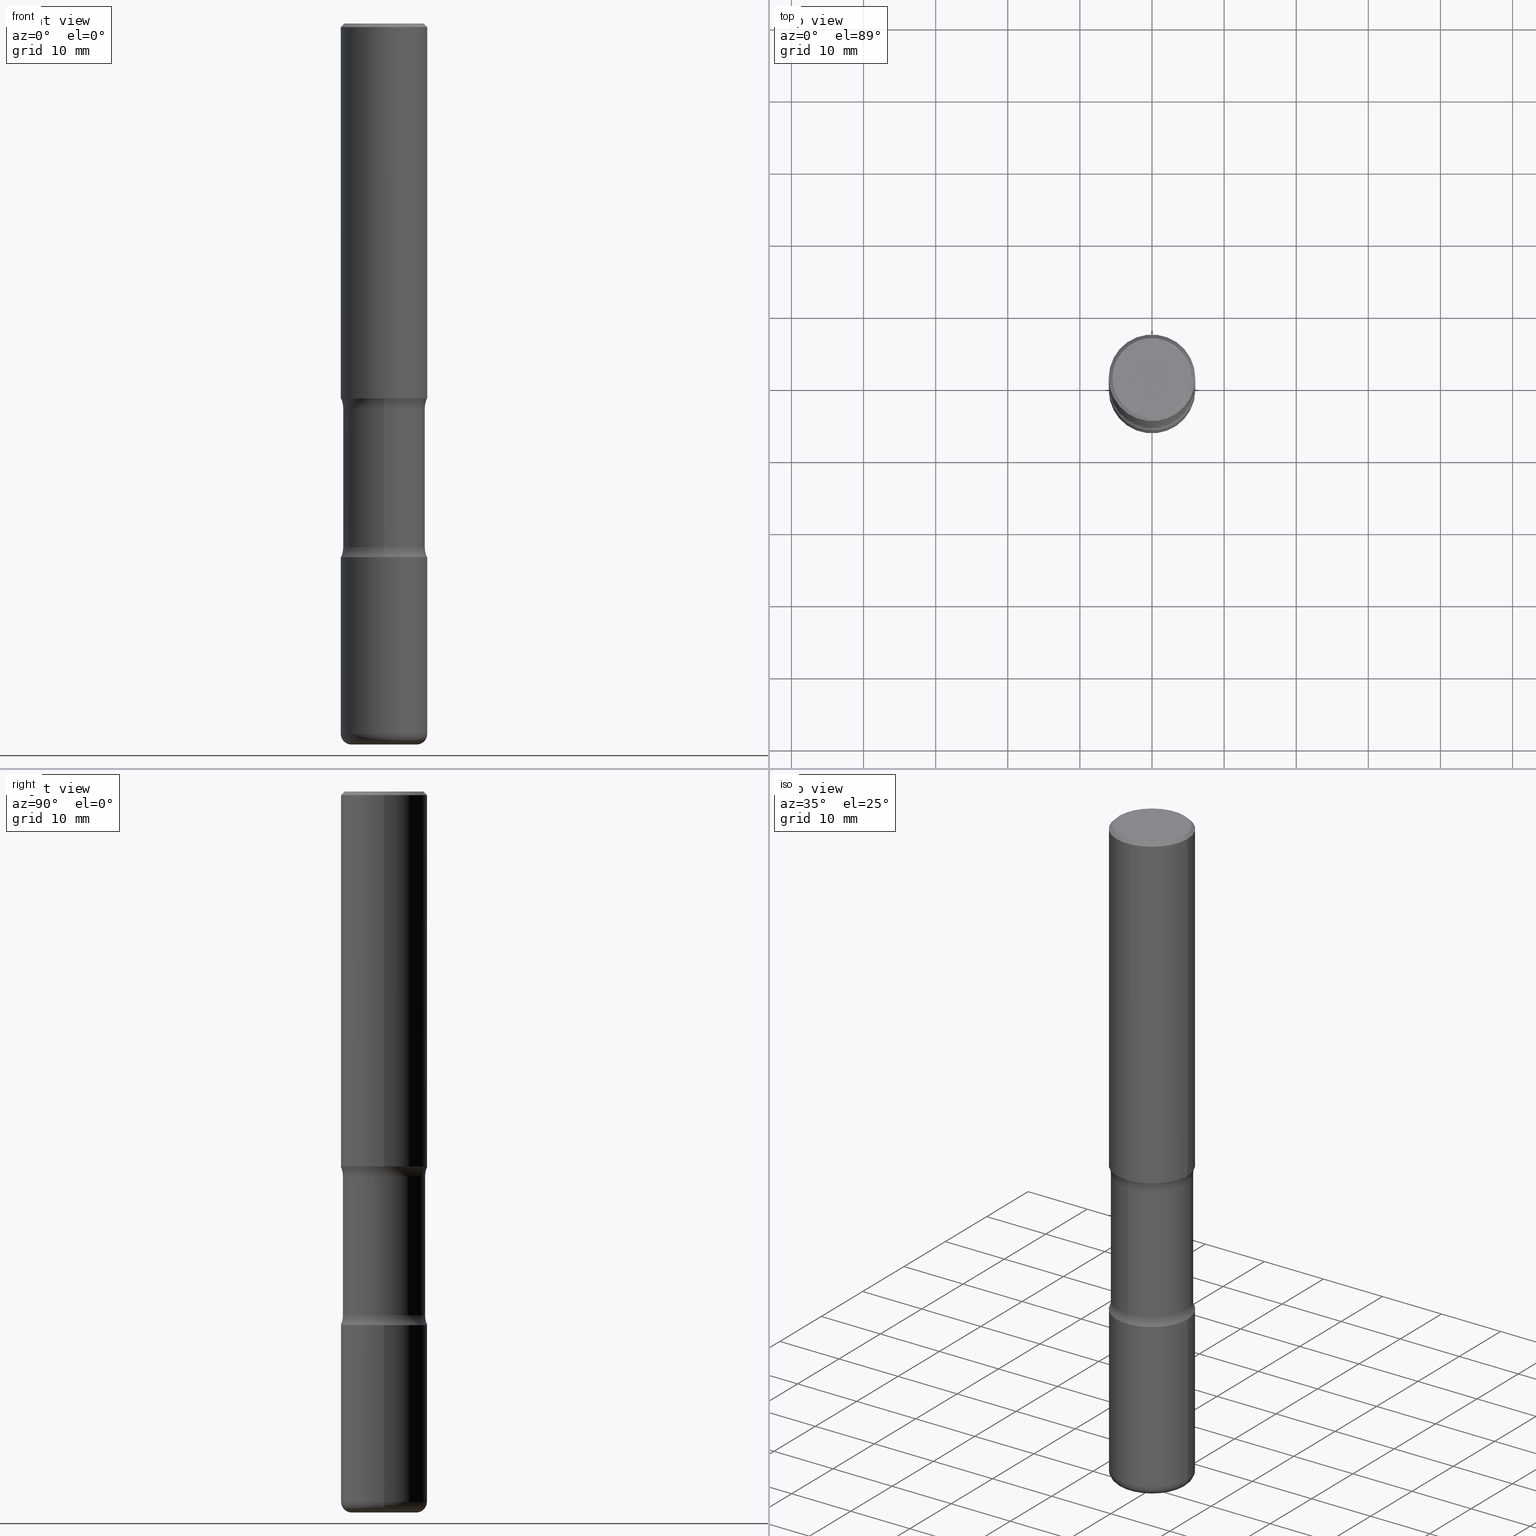
[diagram: canonical four-view strip — front | top / right | iso, engineering-drawing reading convention]
A machine part, canonical four-view strip (front | top / right | iso — engineering-drawing reading convention). The complete STEP part file that produces these views, byte-faithful:
ISO-10303-21;
HEADER;
FILE_DESCRIPTION (( 'STEP AP203' ),
    '1' );
FILE_NAME ('47702.STEP',
    '2024-03-02T07:29:10',
    ( '' ),
    ( '' ),
    'SwSTEP 2.0',
    'SolidWorks 2023',
    '' );
FILE_SCHEMA (( 'CONFIG_CONTROL_DESIGN' ));
ENDSEC;

DATA;
#1 = CARTESIAN_POINT ( 'NONE',  ( -0.2362000000000001598, -1.930493169962915017E-15, -2.047200000000000131 ) ) ;
#2 = PLANE ( 'NONE',  #527 ) ;
#3 = DIRECTION ( 'NONE',  ( 2.445468806185136597E-29, -3.491481338843145583E-15, -1.000000000000000000 ) ) ;
#4 = CIRCLE ( 'NONE', #220, 0.1250000000000000000 ) ;
#5 = AXIS2_PLACEMENT_3D ( 'NONE', #321, #384, #298 ) ;
#6 = CYLINDRICAL_SURFACE ( 'NONE', #74, 0.2243999999999999329 ) ;
#7 = DIRECTION ( 'NONE',  ( -2.445468806185136597E-29, 3.491481338843145583E-15, 1.000000000000000000 ) ) ;
#8 = CYLINDRICAL_SURFACE ( 'NONE', #249, 0.2362000000000001598 ) ;
#9 = DIRECTION ( 'NONE',  ( -2.445468806185136597E-29, 3.491481338843145583E-15, 1.000000000000000000 ) ) ;
#10 = CLOSED_SHELL ( 'NONE', ( #496, #555, #421, #315, #323, #400 ) ) ;
#11 = CIRCLE ( 'NONE', #404, 0.2361999999999998823 ) ;
#12 = DIRECTION ( 'NONE',  ( -2.445468806185136597E-29, 3.491481338843145583E-15, 1.000000000000000000 ) ) ;
#13 = ORIENTED_EDGE ( 'NONE', *, *, #200, .F. ) ;
#14 = FACE_OUTER_BOUND ( 'NONE', #292, .T. ) ;
#15 = VERTEX_POINT ( 'NONE', #552 ) ;
#16 = CARTESIAN_POINT ( 'NONE',  ( 4.936620538380257512E-29, -7.247636831167487464E-15, -2.047200000000000131 ) ) ;
#17 = VERTEX_POINT ( 'NONE', #199 ) ;
#18 = CONICAL_SURFACE ( 'NONE', #131, 0.2361999999999998823, 0.7853981633974479459 ) ;
#19 = AXIS2_PLACEMENT_3D ( 'NONE', #244, #497, #417 ) ;
#20 = EDGE_CURVE ( 'NONE', #549, #366, #46, .T. ) ;
#21 = ORIENTED_EDGE ( 'NONE', *, *, #328, .T. ) ;
#22 = COORDINATED_UNIVERSAL_TIME_OFFSET ( 5, 0, .BEHIND. ) ;
#23 = FACE_OUTER_BOUND ( 'NONE', #355, .T. ) ;
#24 = EDGE_LOOP ( 'NONE', ( #370, #377, #56, #13 ) ) ;
#25 = EDGE_CURVE ( 'NONE', #480, #351, #337, .T. ) ;
#26 = DIRECTION ( 'NONE',  ( -2.445468806185136597E-29, 3.491481338843145583E-15, 1.000000000000000000 ) ) ;
#27 = AXIS2_PLACEMENT_3D ( 'NONE', #49, #365, #363 ) ;
#28 = APPROVAL_PERSON_ORGANIZATION ( #101, #164, #233 ) ;
#29 = DIRECTION ( 'NONE',  ( 2.438088387897960049E-29, -3.491481338843145188E-15, -1.000000000000000000 ) ) ;
#30 = EDGE_LOOP ( 'NONE', ( #66, #240, #243, #499 ) ) ;
#31 = CARTESIAN_POINT ( 'NONE',  ( -1.579972688886734072E-15, -0.2244000000000073713, -2.100216601173594544 ) ) ;
#32 = PERSON_AND_ORGANIZATION ( #43, #478 ) ;
#33 = ORIENTED_EDGE ( 'NONE', *, *, #42, .T. ) ;
#34 = DIRECTION ( 'NONE',  ( 1.000000000000000000, -6.982962677686266711E-15, 4.876176775795936353E-29 ) ) ;
#35 = DIRECTION ( 'NONE',  ( 2.525985086076564115E-29, -3.376177443336566513E-15, -1.000000000000000000 ) ) ;
#36 = AXIS2_PLACEMENT_3D ( 'NONE', #208, #9, #305 ) ;
#37 = CIRCLE ( 'NONE', #19, 0.2161999999999998368 ) ;
#38 = AXIS2_PLACEMENT_3D ( 'NONE', #190, #88, #524 ) ;
#39 = LINE ( 'NONE', #117, #99 ) ;
#40 = ADVANCED_FACE ( 'NONE', ( #334 ), #294, .F. ) ;
#41 = DIRECTION ( 'NONE',  ( -2.438088387897960049E-29, 3.491481338843145188E-15, 1.000000000000000000 ) ) ;
#42 = EDGE_CURVE ( 'NONE', #513, #207, #115, .T. ) ;
#43 = PERSON ( 'UNSPECIFIED', 'UNSPECIFIED', 'UNSPECIFIED', ('UNSPECIFIED'), ('UNSPECIFIED'), ('UNSPECIFIED') ) ;
#44 = DIRECTION ( 'NONE',  ( 7.105427357601001859E-15, 1.000000000000000000, -3.491481338843145583E-15 ) ) ;
#45 = DIRECTION ( 'NONE',  ( -2.445468806185136597E-29, 3.491481338843145583E-15, 1.000000000000000000 ) ) ;
#46 = CIRCLE ( 'NONE', #519, 0.2362000000000001321 ) ;
#47 = ORIENTED_EDGE ( 'NONE', *, *, #414, .T. ) ;
#48 = LOCAL_TIME ( 2, 29, 10.00000000000000000, #22 ) ;
#49 = CARTESIAN_POINT ( 'NONE',  ( 9.483283483505337853E-29, -1.353961548389983144E-14, -3.877899999999999014 ) ) ;
#50 = ADVANCED_FACE ( 'NONE', ( #113 ), #395, .T. ) ;
#51 = DIRECTION ( 'NONE',  ( 2.438088387897960049E-29, -3.491481338843145188E-15, -1.000000000000000000 ) ) ;
#52 = ORIENTED_EDGE ( 'NONE', *, *, #90, .T. ) ;
#53 = DATE_AND_TIME ( #271, #202 ) ;
#54 = CARTESIAN_POINT ( 'NONE',  ( 9.710227154047748282E-29, -1.362793696358492956E-14, -3.937000000000000277 ) ) ;
#55 = CC_DESIGN_PERSON_AND_ORGANIZATION_ASSIGNMENT ( #554, #460, ( #167 ) ) ;
#56 = ORIENTED_EDGE ( 'NONE', *, *, #293, .F. ) ;
#57 = CIRCLE ( 'NONE', #340, 0.1771000000000002295 ) ;
#58 = AXIS2_PLACEMENT_3D ( 'NONE', #440, #51, #182 ) ;
#59 = CARTESIAN_POINT ( 'NONE',  ( 0.000000000000000000, 0.000000000000000000, 0.000000000000000000 ) ) ;
#60 = DIRECTION ( 'NONE',  ( -6.982962677686266711E-15, -1.000000000000000000, 0.000000000000000000 ) ) ;
#61 = EDGE_CURVE ( 'NONE', #179, #68, #339, .T. ) ;
#62 = DIRECTION ( 'NONE',  ( 6.982962677686265922E-15, 1.000000000000000000, -3.469747663417773452E-15 ) ) ;
#63 =( NAMED_UNIT ( * ) SI_UNIT ( $, .STERADIAN. ) SOLID_ANGLE_UNIT ( ) );
#64 = EDGE_LOOP ( 'NONE', ( #21, #466, #535, #102 ) ) ;
#65 = CLOSED_SHELL ( 'NONE', ( #397, #210, #149, #259, #40, #297, #121, #345 ) ) ;
#66 = ORIENTED_EDGE ( 'NONE', *, *, #69, .F. ) ;
#67 = PERSON_AND_ORGANIZATION_ROLE ( 'classification_officer' ) ;
#68 = VERTEX_POINT ( 'NONE', #282 ) ;
#69 = EDGE_CURVE ( 'NONE', #269, #526, #76, .T. ) ;
#70 = DIRECTION ( 'NONE',  ( 1.000000000000000000, -6.982962677686267499E-15, 0.000000000000000000 ) ) ;
#71 = DIRECTION ( 'NONE',  ( 2.525985086076564115E-29, -3.376177443336566513E-15, -1.000000000000000000 ) ) ;
#72 = PERSON_AND_ORGANIZATION ( #43, #478 ) ;
#73 = EDGE_LOOP ( 'NONE', ( #291, #401, #296, #444 ) ) ;
#74 = AXIS2_PLACEMENT_3D ( 'NONE', #276, #311, #446 ) ;
#75 = AXIS2_PLACEMENT_3D ( 'NONE', #104, #26, #203 ) ;
#76 = LINE ( 'NONE', #545, #142 ) ;
#77 = CARTESIAN_POINT ( 'NONE',  ( 0.2362000000000001321, -1.182145751705511899E-14, -2.913400000000000212 ) ) ;
#78 = PRODUCT_RELATED_PRODUCT_CATEGORY ( 'detail', '', ( #399 ) ) ;
#79 = CARTESIAN_POINT ( 'NONE',  ( 0.1771000000000002295, -1.477629817411807190E-14, -3.877899999999999014 ) ) ;
#80 = FACE_OUTER_BOUND ( 'NONE', #360, .T. ) ;
#81 = AXIS2_PLACEMENT_3D ( 'NONE', #373, #105, #462 ) ;
#82 = AXIS2_PLACEMENT_3D ( 'NONE', #317, #482, #95 ) ;
#83 = PERSON_AND_ORGANIZATION_ROLE ( 'creator' ) ;
#84 = EDGE_CURVE ( 'NONE', #68, #225, #445, .T. ) ;
#85 = DIRECTION ( 'NONE',  ( -1.000000000000000000, 7.105427357600997914E-15, 0.000000000000000000 ) ) ;
#86 = CYLINDRICAL_SURFACE ( 'NONE', #277, 0.2361999999999999933 ) ;
#87 = EDGE_CURVE ( 'NONE', #549, #204, #476, .T. ) ;
#88 = DIRECTION ( 'NONE',  ( 2.525985086076564115E-29, -3.376177443336566513E-15, -1.000000000000000000 ) ) ;
#89 = CIRCLE ( 'NONE', #387, 0.2243999999999999606 ) ;
#90 = EDGE_CURVE ( 'NONE', #351, #204, #89, .T. ) ;
#91 = VECTOR ( 'NONE', #136, 39.37007874015748143 ) ;
#92 = DIRECTION ( 'NONE',  ( 1.000000000000000000, -6.982962677686266711E-15, 4.876176775795936353E-29 ) ) ;
#93 = FACE_OUTER_BOUND ( 'NONE', #393, .T. ) ;
#94 = ORIENTED_EDGE ( 'NONE', *, *, #20, .F. ) ;
#95 = DIRECTION ( 'NONE',  ( 6.982962677686265922E-15, 1.000000000000000000, -3.652203200085913934E-15 ) ) ;
#96 = CYLINDRICAL_SURFACE ( 'NONE', #358, 0.2362000000000001598 ) ;
#97 = DIRECTION ( 'NONE',  ( -6.982962677686265922E-15, -1.000000000000000000, 3.376177443336566513E-15 ) ) ;
#98 = ORIENTED_EDGE ( 'NONE', *, *, #69, .T. ) ;
#99 = VECTOR ( 'NONE', #212, 39.37007874015748143 ) ;
#100 = CC_DESIGN_APPROVAL ( #164, ( #167 ) ) ;
#101 = PERSON_AND_ORGANIZATION ( #43, #478 ) ;
#102 = ORIENTED_EDGE ( 'NONE', *, *, #538, .F. ) ;
#103 = CARTESIAN_POINT ( 'NONE',  ( 0.2361999999999998823, -1.690279253850498179E-15, -0.02000000000000006981 ) ) ;
#104 = CARTESIAN_POINT ( 'NONE',  ( 7.124628819939777829E-29, -1.017208173258562247E-14, -2.913400000000000212 ) ) ;
#105 = DIRECTION ( 'NONE',  ( 2.445468806185136597E-29, -3.491481338843145583E-15, -1.000000000000000000 ) ) ;
#106 = DATE_AND_TIME ( #330, #48 ) ;
#107 = TOROIDAL_SURFACE ( 'NONE', #547, 0.3493999999999998218, 0.1249999999999999029 ) ;
#108 = VECTOR ( 'NONE', #420, 39.37007874015748143 ) ;
#109 = DIRECTION ( 'NONE',  ( -1.000000000000000000, 6.982962677686265922E-15, -4.876176775795935793E-29 ) ) ;
#110 = ORIENTED_EDGE ( 'NONE', *, *, #515, .F. ) ;
#111 = CARTESIAN_POINT ( 'NONE',  ( 1.509716530915769534E-15, 0.2161999999999998368, -7.527240092128373149E-16 ) ) ;
#112 = CARTESIAN_POINT ( 'NONE',  ( -0.1771000000000002295, -1.228124429886869218E-14, -3.877899999999999014 ) ) ;
#113 = FACE_OUTER_BOUND ( 'NONE', #324, .T. ) ;
#114 = DIRECTION ( 'NONE',  ( -2.445468806185136597E-29, 3.491481338843145583E-15, 1.000000000000000000 ) ) ;
#115 = CIRCLE ( 'NONE', #402, 0.1249999999999999029 ) ;
#116 = CIRCLE ( 'NONE', #502, 0.2243999999999999606 ) ;
#117 = CARTESIAN_POINT ( 'NONE',  ( -1.539495750699834052E-15, -0.2244000000000135608, -3.936999999999999389 ) ) ;
#118 = PERSON_AND_ORGANIZATION ( #43, #478 ) ;
#119 = FACE_OUTER_BOUND ( 'NONE', #172, .T. ) ;
#120 = CARTESIAN_POINT ( 'NONE',  ( 6.994978375559792251E-29, -9.986975258939122984E-15, -2.860383398826405354 ) ) ;
#121 = ADVANCED_FACE ( 'NONE', ( #453 ), #419, .F. ) ;
#122 = DIRECTION ( 'NONE',  ( 1.000000000000000000, -6.982962677686266711E-15, 4.876176775795936353E-29 ) ) ;
#123 = CIRCLE ( 'NONE', #201, 0.2362000000000001321 ) ;
#124 = AXIS2_PLACEMENT_3D ( 'NONE', #449, #232, #541 ) ;
#125 = ORIENTED_EDGE ( 'NONE', *, *, #538, .T. ) ;
#126 = DIRECTION ( 'NONE',  ( 1.000000000000000000, -6.982962677686266711E-15, 0.000000000000000000 ) ) ;
#127 = ORIENTED_EDGE ( 'NONE', *, *, #492, .T. ) ;
#128 = CARTESIAN_POINT ( 'NONE',  ( -0.2361999999999999933, 1.678301941865356591E-15, -1.161852468318208757E-29 ) ) ;
#129 = ADVANCED_FACE ( 'NONE', ( #23 ), #503, .F. ) ;
#130 = FACE_OUTER_BOUND ( 'NONE', #73, .T. ) ;
#131 = AXIS2_PLACEMENT_3D ( 'NONE', #559, #3, #302 ) ;
#132 = AXIS2_PLACEMENT_3D ( 'NONE', #274, #226, #403 ) ;
#133 = CARTESIAN_POINT ( 'NONE',  ( 1.649375784469567917E-15, 0.2361999999999899458, -2.913400000000000656 ) ) ;
#134 = ORIENTED_EDGE ( 'NONE', *, *, #391, .F. ) ;
#135 = FACE_OUTER_BOUND ( 'NONE', #413, .T. ) ;
#136 = DIRECTION ( 'NONE',  ( -2.445468806185136877E-29, 3.491481338843145188E-15, 1.000000000000000000 ) ) ;
#137 = ORIENTED_EDGE ( 'NONE', *, *, #87, .T. ) ;
#138 = PERSON_AND_ORGANIZATION_ROLE ( 'creator' ) ;
#139 = DIRECTION ( 'NONE',  ( 1.000000000000000000, -6.982962677686266711E-15, 4.876176775795936353E-29 ) ) ;
#140 = CC_DESIGN_PERSON_AND_ORGANIZATION_ASSIGNMENT ( #283, #67, ( #539 ) ) ;
#141 = ORIENTED_EDGE ( 'NONE', *, *, #376, .F. ) ;
#142 = VECTOR ( 'NONE', #505, 39.37007874015748143 ) ;
#143 = CARTESIAN_POINT ( 'NONE',  ( -0.2362000000000001321, -1.017754666637736977E-14, -2.913400000000000212 ) ) ;
#144 = MANIFOLD_SOLID_BREP ( 'Body-Move/Copy2[2]', #166 ) ;
#145 = DATE_TIME_ROLE ( 'creation_date' ) ;
#146 = DIRECTION ( 'NONE',  ( 2.438088387897960049E-29, -3.491481338843145188E-15, -1.000000000000000000 ) ) ;
#147 = ORIENTED_EDGE ( 'NONE', *, *, #348, .T. ) ;
#148 = DIRECTION ( 'NONE',  ( 6.860497997771529985E-15, 1.000000000000000000, 0.000000000000000000 ) ) ;
#149 = ADVANCED_FACE ( 'NONE', ( #378 ), #107, .F. ) ;
#150 = APPROVAL_STATUS ( 'not_yet_approved' ) ;
#151 = DATE_AND_TIME ( #372, #464 ) ;
#152 = DIRECTION ( 'NONE',  ( 2.525985086076564115E-29, -3.376177443336566513E-15, -1.000000000000000000 ) ) ;
#153 = MANIFOLD_SOLID_BREP ( 'Body-Move/Copy2[4]', #65 ) ;
#154 = COORDINATED_UNIVERSAL_TIME_OFFSET ( 5, 0, .BEHIND. ) ;
#155 = CC_DESIGN_DATE_AND_TIME_ASSIGNMENT ( #485, #145, ( #551 ) ) ;
#156 = CIRCLE ( 'NONE', #5, 0.2362000000000001321 ) ;
#157 = CARTESIAN_POINT ( 'NONE',  ( 5.070539682259229331E-29, -7.426630284172150130E-15, -2.100216601173595432 ) ) ;
#158 = VERTEX_POINT ( 'NONE', #514 ) ;
#159 = ORIENTED_EDGE ( 'NONE', *, *, #354, .T. ) ;
#160 = ADVANCED_FACE ( 'NONE', ( #168 ), #86, .T. ) ;
#161 = CARTESIAN_POINT ( 'NONE',  ( 0.2362000000000001321, -8.797136381349186305E-15, -2.047200000000000131 ) ) ;
#162 = VERTEX_POINT ( 'NONE', #1 ) ;
#163 = DIRECTION ( 'NONE',  ( 2.525985086076564115E-29, -3.376177443336566513E-15, -1.000000000000000000 ) ) ;
#164 = APPROVAL ( #181, 'UNSPECIFIED' ) ;
#165 = ORIENTED_EDGE ( 'NONE', *, *, #61, .F. ) ;
#166 = CLOSED_SHELL ( 'NONE', ( #160, #184, #50, #129, #264, #170 ) ) ;
#167 = PRODUCT_DEFINITION_FORMATION_WITH_SPECIFIED_SOURCE ( 'ANY', '', #399, .NOT_KNOWN. ) ;
#168 = FACE_OUTER_BOUND ( 'NONE', #64, .T. ) ;
#169 = CARTESIAN_POINT ( 'NONE',  ( 9.627810689950879185E-29, -1.374596203102545868E-14, -3.936999999999998501 ) ) ;
#170 = ADVANCED_FACE ( 'NONE', ( #386 ), #263, .T. ) ;
#171 = DIRECTION ( 'NONE',  ( 1.000000000000000000, -6.982962677686265922E-15, 4.876176775795935793E-29 ) ) ;
#172 = EDGE_LOOP ( 'NONE', ( #495, #405, #543, #448 ) ) ;
#173 = CARTESIAN_POINT ( 'NONE',  ( 0.2161999999999998368, -1.586759460484351002E-15, 4.268512490111238857E-18 ) ) ;
#174 = AXIS2_PLACEMENT_3D ( 'NONE', #374, #146, #544 ) ;
#175 = EDGE_LOOP ( 'NONE', ( #456, #525, #385, #223 ) ) ;
#176 = CARTESIAN_POINT ( 'NONE',  ( 5.006363740022212241E-29, -7.147760596879688202E-15, -2.047200000000000131 ) ) ;
#177 = LINE ( 'NONE', #346, #463 ) ;
#178 = LINE ( 'NONE', #128, #91 ) ;
#179 = VERTEX_POINT ( 'NONE', #173 ) ;
#180 = CC_DESIGN_PERSON_AND_ORGANIZATION_ASSIGNMENT ( #72, #336, ( #399 ) ) ;
#181 = APPROVAL_STATUS ( 'not_yet_approved' ) ;
#182 = DIRECTION ( 'NONE',  ( -1.000000000000000000, 6.982962677686265922E-15, -4.876176775795935793E-29 ) ) ;
#183 = AXIS2_PLACEMENT_3D ( 'NONE', #427, #258, #34 ) ;
#184 = ADVANCED_FACE ( 'NONE', ( #119 ), #18, .T. ) ;
#185 = CIRCLE ( 'NONE', #250, 0.1771000000000002295 ) ;
#186 = APPROVAL_DATE_TIME ( #53, #164 ) ;
#187 = CARTESIAN_POINT ( 'NONE',  ( 5.006363740022212241E-29, -7.147760596879688202E-15, -2.047200000000000131 ) ) ;
#188 = ORIENTED_EDGE ( 'NONE', *, *, #189, .T. ) ;
#189 = EDGE_CURVE ( 'NONE', #204, #351, #332, .T. ) ;
#190 = CARTESIAN_POINT ( 'NONE',  ( 4.936620538380257512E-29, -7.247636831167487464E-15, -2.047200000000000131 ) ) ;
#191 = LINE ( 'NONE', #409, #108 ) ;
#192 = ORIENTED_EDGE ( 'NONE', *, *, #42, .F. ) ;
#193 = AXIS2_PLACEMENT_3D ( 'NONE', #79, #309, #255 ) ;
#194 = CARTESIAN_POINT ( 'NONE',  ( -1.620449627073565067E-15, -0.2362000000000102629, -2.913399999999999768 ) ) ;
#195 = ADVANCED_BREP_SHAPE_REPRESENTATION ( '47702', ( #516, #144, #153, #124 ), #279 ) ;
#196 = CARTESIAN_POINT ( 'NONE',  ( 5.006363740022212241E-29, -7.147760596879688202E-15, -2.047200000000000131 ) ) ;
#197 = CARTESIAN_POINT ( 'NONE',  ( -2.397058000421302516E-15, -0.3494000000000099249, -2.860383398826404022 ) ) ;
#198 = ORIENTED_EDGE ( 'NONE', *, *, #434, .F. ) ;
#199 = CARTESIAN_POINT ( 'NONE',  ( -0.1771000000000002295, -1.217445219401439645E-14, -3.936999999999998501 ) ) ;
#200 = EDGE_CURVE ( 'NONE', #241, #15, #236, .T. ) ;
#201 = AXIS2_PLACEMENT_3D ( 'NONE', #176, #486, #222 ) ;
#202 = LOCAL_TIME ( 2, 29, 10.00000000000000000, #316 ) ;
#203 = DIRECTION ( 'NONE',  ( 1.000000000000000000, -6.982962677686269077E-15, 0.000000000000000000 ) ) ;
#204 = VERTEX_POINT ( 'NONE', #430 ) ;
#205 = EDGE_CURVE ( 'NONE', #17, #241, #57, .T. ) ;
#206 = DIRECTION ( 'NONE',  ( 6.982962677686265922E-15, 1.000000000000000000, -3.376177443336566513E-15 ) ) ;
#207 = VERTEX_POINT ( 'NONE', #511 ) ;
#208 = CARTESIAN_POINT ( 'NONE',  ( 9.483283483505337853E-29, -1.353961548389983144E-14, -3.877899999999999014 ) ) ;
#209 = VECTOR ( 'NONE', #71, 39.37007874015748143 ) ;
#210 = ADVANCED_FACE ( 'NONE', ( #392 ), #300, .F. ) ;
#211 = CIRCLE ( 'NONE', #82, 0.2243999999999999606 ) ;
#212 = DIRECTION ( 'NONE',  ( 2.525985086076564115E-29, -3.376177443336566513E-15, -1.000000000000000000 ) ) ;
#213 = APPLICATION_CONTEXT ( 'configuration controlled 3d designs of mechanical parts and assemblies' ) ;
#214 = CARTESIAN_POINT ( 'NONE',  ( -0.2361999999999998823, 1.579546157692632438E-15, -0.02000000000000006981 ) ) ;
#215 = CARTESIAN_POINT ( 'NONE',  ( -0.2362000000000000766, -1.186131354203447347E-14, -3.877899999999999014 ) ) ;
#216 = ORIENTED_EDGE ( 'NONE', *, *, #515, .T. ) ;
#217 = EDGE_CURVE ( 'NONE', #513, #204, #39, .T. ) ;
#218 = DIRECTION ( 'NONE',  ( -6.982962677686264344E-15, -1.000000000000000000, 0.000000000000000000 ) ) ;
#219 = CARTESIAN_POINT ( 'NONE',  ( 5.006363740022212241E-29, -7.147760596879688202E-15, -2.047200000000000131 ) ) ;
#220 = AXIS2_PLACEMENT_3D ( 'NONE', #224, #530, #60 ) ;
#221 = CIRCLE ( 'NONE', #132, 0.2161999999999998368 ) ;
#222 = DIRECTION ( 'NONE',  ( 1.000000000000000000, -6.982962677686269077E-15, 0.000000000000000000 ) ) ;
#223 = ORIENTED_EDGE ( 'NONE', *, *, #246, .F. ) ;
#224 = CARTESIAN_POINT ( 'NONE',  ( 2.439847159583651160E-15, 0.3493999999999899964, -2.860383398826406243 ) ) ;
#225 = VERTEX_POINT ( 'NONE', #433 ) ;
#226 = DIRECTION ( 'NONE',  ( -2.445468806185136597E-29, 3.491481338843145583E-15, 1.000000000000000000 ) ) ;
#227 = TOROIDAL_SURFACE ( 'NONE', #27, 0.1771000000000002295, 0.05909999999999966669 ) ;
#228 = EDGE_LOOP ( 'NONE', ( #320, #493 ) ) ;
#229 = AXIS2_PLACEMENT_3D ( 'NONE', #112, #44, #85 ) ;
#230 = CC_DESIGN_PERSON_AND_ORGANIZATION_ASSIGNMENT ( #533, #138, ( #167 ) ) ;
#231 = ORIENTED_EDGE ( 'NONE', *, *, #328, .F. ) ;
#232 = DIRECTION ( 'NONE',  ( 0.000000000000000000, 0.000000000000000000, 1.000000000000000000 ) ) ;
#233 = APPROVAL_ROLE ( '' ) ;
#234 = MECHANICAL_CONTEXT ( 'NONE', #213, 'mechanical' ) ;
#235 = ORIENTED_EDGE ( 'NONE', *, *, #354, .F. ) ;
#236 = CIRCLE ( 'NONE', #193, 0.05909999999999968751 ) ;
#237 = LOCAL_TIME ( 2, 29, 10.00000000000000000, #154 ) ;
#238 = CARTESIAN_POINT ( 'NONE',  ( 1.566976824872848494E-15, 0.2243999999999925499, -2.100216601173596320 ) ) ;
#239 = CC_DESIGN_DATE_AND_TIME_ASSIGNMENT ( #465, #546, ( #539 ) ) ;
#240 = ORIENTED_EDGE ( 'NONE', *, *, #246, .T. ) ;
#241 = VERTEX_POINT ( 'NONE', #344 ) ;
#242 = EDGE_CURVE ( 'NONE', #158, #225, #517, .T. ) ;
#243 = ORIENTED_EDGE ( 'NONE', *, *, #273, .T. ) ;
#244 = CARTESIAN_POINT ( 'NONE',  ( -1.043851414335219820E-46, 1.490343170380447200E-32, 4.268512490100411279E-18 ) ) ;
#245 = DIRECTION ( 'NONE',  ( 6.982962677686265922E-15, 1.000000000000000000, -2.313165108945183485E-15 ) ) ;
#246 = EDGE_CURVE ( 'NONE', #269, #15, #313, .T. ) ;
#247 = APPROVAL ( #553, 'UNSPECIFIED' ) ;
#248 = ORIENTED_EDGE ( 'NONE', *, *, #492, .F. ) ;
#249 = AXIS2_PLACEMENT_3D ( 'NONE', #532, #7, #139 ) ;
#250 = AXIS2_PLACEMENT_3D ( 'NONE', #474, #265, #398 ) ;
#251 = DIRECTION ( 'NONE',  ( 2.525985086076564115E-29, -3.376177443336566513E-15, -1.000000000000000000 ) ) ;
#252 = APPROVAL_ROLE ( '' ) ;
#253 = EDGE_LOOP ( 'NONE', ( #216, #408 ) ) ;
#254 = CARTESIAN_POINT ( 'NONE',  ( 0.000000000000000000, 0.000000000000000000, 0.000000000000000000 ) ) ;
#255 = DIRECTION ( 'NONE',  ( 1.000000000000000000, -6.982962677686266711E-15, 0.000000000000000000 ) ) ;
#256 = AXIS2_PLACEMENT_3D ( 'NONE', #451, #542, #70 ) ;
#257 = CIRCLE ( 'NONE', #229, 0.05909999999999968751 ) ;
#258 = DIRECTION ( 'NONE',  ( -2.445468806185136597E-29, 3.491481338843145583E-15, 1.000000000000000000 ) ) ;
#259 = ADVANCED_FACE ( 'NONE', ( #80 ), #501, .F. ) ;
#260 = DIRECTION ( 'NONE',  ( -2.445468806185136597E-29, 3.491481338843145583E-15, 1.000000000000000000 ) ) ;
#261 = DIRECTION ( 'NONE',  ( -1.000000000000000000, 6.982962677686265922E-15, -4.883557194083112340E-29 ) ) ;
#262 = COORDINATED_UNIVERSAL_TIME_OFFSET ( 5, 0, .BEHIND. ) ;
#263 = CYLINDRICAL_SURFACE ( 'NONE', #183, 0.2361999999999999933 ) ;
#264 = ADVANCED_FACE ( 'NONE', ( #473 ), #2, .F. ) ;
#265 = DIRECTION ( 'NONE',  ( -2.445468806185136597E-29, 3.491481338843145583E-15, 1.000000000000000000 ) ) ;
#266 = EDGE_LOOP ( 'NONE', ( #134, #159, #125, #248 ) ) ;
#267 = CARTESIAN_POINT ( 'NONE',  ( 1.649375784469546815E-15, 0.2361999999999930266, -2.047200000000001019 ) ) ;
#268 = PLANE ( 'NONE',  #58 ) ;
#269 = VERTEX_POINT ( 'NONE', #215 ) ;
#270 = DESIGN_CONTEXT ( 'detailed design', #307, 'design' ) ;
#271 = CALENDAR_DATE ( 2024, 2, 3 ) ;
#272 = FACE_OUTER_BOUND ( 'NONE', #253, .T. ) ;
#273 = EDGE_CURVE ( 'NONE', #15, #280, #177, .T. ) ;
#274 = CARTESIAN_POINT ( 'NONE',  ( -1.043851414335219820E-46, 1.490343170380447200E-32, 4.268512490100411279E-18 ) ) ;
#275 = ORIENTED_EDGE ( 'NONE', *, *, #458, .T. ) ;
#276 = CARTESIAN_POINT ( 'NONE',  ( 9.710227154047748282E-29, -1.362793696358492956E-14, -3.937000000000000277 ) ) ;
#277 = AXIS2_PLACEMENT_3D ( 'NONE', #254, #45, #122 ) ;
#278 = EDGE_LOOP ( 'NONE', ( #141, #333 ) ) ;
#279 =( GEOMETRIC_REPRESENTATION_CONTEXT ( 3 ) GLOBAL_UNCERTAINTY_ASSIGNED_CONTEXT ( ( #481 ) ) GLOBAL_UNIT_ASSIGNED_CONTEXT ( ( #295, #326, #63 ) ) REPRESENTATION_CONTEXT ( 'NONE', 'WORKASPACE' ) );
#280 = VERTEX_POINT ( 'NONE', #77 ) ;
#281 = APPLICATION_PROTOCOL_DEFINITION ( 'international standard', 'config_control_design', 1994, #213 ) ;
#282 = CARTESIAN_POINT ( 'NONE',  ( 0.2361999999999998823, -1.690279253850498179E-15, -0.02000000000000006981 ) ) ;
#283 = PERSON_AND_ORGANIZATION ( #43, #478 ) ;
#284 = DIRECTION ( 'NONE',  ( 6.982962677686265922E-15, 1.000000000000000000, -3.652203200085913934E-15 ) ) ;
#285 = DIRECTION ( 'NONE',  ( 6.982962677686265922E-15, 1.000000000000000000, -2.434802133390609421E-15 ) ) ;
#286 = CIRCLE ( 'NONE', #36, 0.2362000000000002153 ) ;
#287 = AXIS2_PLACEMENT_3D ( 'NONE', #310, #390, #396 ) ;
#288 = SHAPE_DEFINITION_REPRESENTATION ( #521, #195 ) ;
#289 = ORIENTED_EDGE ( 'NONE', *, *, #447, .F. ) ;
#290 = AXIS2_PLACEMENT_3D ( 'NONE', #54, #312, #479 ) ;
#291 = ORIENTED_EDGE ( 'NONE', *, *, #407, .T. ) ;
#292 = EDGE_LOOP ( 'NONE', ( #500, #275, #381, #487 ) ) ;
#293 = EDGE_CURVE ( 'NONE', #15, #269, #286, .T. ) ;
#294 = PLANE ( 'NONE',  #369 ) ;
#295 =( CONVERSION_BASED_UNIT ( 'INCH', #494 ) LENGTH_UNIT ( ) NAMED_UNIT ( #303 ) );
#296 = ORIENTED_EDGE ( 'NONE', *, *, #90, .F. ) ;
#297 = ADVANCED_FACE ( 'NONE', ( #272 ), #436, .F. ) ;
#298 = DIRECTION ( 'NONE',  ( 6.982962677686265922E-15, 1.000000000000000000, -2.313165108945183485E-15 ) ) ;
#299 = CALENDAR_DATE ( 2024, 2, 3 ) ;
#300 = TOROIDAL_SURFACE ( 'NONE', #411, 0.3493999999999999884, 0.1250000000000000000 ) ;
#301 = APPROVAL_PERSON_ORGANIZATION ( #32, #361, #252 ) ;
#302 = DIRECTION ( 'NONE',  ( -1.000000000000000000, 6.982962677686267499E-15, 0.000000000000000000 ) ) ;
#303 = DIMENSIONAL_EXPONENTS ( 1.000000000000000000, 0.000000000000000000, 0.000000000000000000, 0.000000000000000000, 0.000000000000000000, 0.000000000000000000, 0.000000000000000000 ) ;
#304 = EDGE_CURVE ( 'NONE', #526, #280, #356, .T. ) ;
#305 = DIRECTION ( 'NONE',  ( 1.000000000000000000, -6.982962677686266711E-15, 0.000000000000000000 ) ) ;
#306 = DIRECTION ( 'NONE',  ( -0.7071067811865472397, 2.468850131082253905E-15, -0.7071067811865477948 ) ) ;
#307 = APPLICATION_CONTEXT ( 'configuration controlled 3d designs of mechanical parts and assemblies' ) ;
#308 = TOROIDAL_SURFACE ( 'NONE', #388, 0.1771000000000002295, 0.05909999999999966669 ) ;
#309 = DIRECTION ( 'NONE',  ( -6.982962677686266711E-15, -1.000000000000000000, 3.491481338843145583E-15 ) ) ;
#310 = CARTESIAN_POINT ( 'NONE',  ( 5.088323202950023588E-29, -7.401163270367792936E-15, -2.100216601173595432 ) ) ;
#311 = DIRECTION ( 'NONE',  ( 2.525985086076564115E-29, -3.376177443336566513E-15, -1.000000000000000000 ) ) ;
#312 = DIRECTION ( 'NONE',  ( 2.525985086076564115E-29, -3.376177443336566513E-15, -1.000000000000000000 ) ) ;
#313 = CIRCLE ( 'NONE', #452, 0.2362000000000002153 ) ;
#314 = ORIENTED_EDGE ( 'NONE', *, *, #87, .F. ) ;
#315 = ADVANCED_FACE ( 'NONE', ( #490 ), #227, .T. ) ;
#316 = COORDINATED_UNIVERSAL_TIME_OFFSET ( 5, 0, .BEHIND. ) ;
#317 = CARTESIAN_POINT ( 'NONE',  ( 5.070539682259229331E-29, -7.426630284172150130E-15, -2.100216601173595432 ) ) ;
#318 = ORIENTED_EDGE ( 'NONE', *, *, #304, .T. ) ;
#319 = FACE_OUTER_BOUND ( 'NONE', #30, .T. ) ;
#320 = ORIENTED_EDGE ( 'NONE', *, *, #394, .F. ) ;
#321 = CARTESIAN_POINT ( 'NONE',  ( 7.124628819939777829E-29, -1.017208173258562247E-14, -2.913400000000000212 ) ) ;
#322 = DIRECTION ( 'NONE',  ( -2.445468806185136597E-29, 3.491481338843145583E-15, 1.000000000000000000 ) ) ;
#323 = ADVANCED_FACE ( 'NONE', ( #319 ), #8, .T. ) ;
#324 = EDGE_LOOP ( 'NONE', ( #165, #198, #364, #127 ) ) ;
#325 = CIRCLE ( 'NONE', #359, 0.1249999999999999029 ) ;
#326 =( NAMED_UNIT ( * ) PLANE_ANGLE_UNIT ( ) SI_UNIT ( $, .RADIAN. ) );
#327 = ORIENTED_EDGE ( 'NONE', *, *, #348, .F. ) ;
#328 = EDGE_CURVE ( 'NONE', #483, #162, #123, .T. ) ;
#329 = CARTESIAN_POINT ( 'NONE',  ( 7.124628819939777829E-29, -1.017208173258562247E-14, -2.913400000000000212 ) ) ;
#330 = CALENDAR_DATE ( 2024, 2, 3 ) ;
#331 = DIRECTION ( 'NONE',  ( 6.982962677686265922E-15, 1.000000000000000000, -3.376177443336566513E-15 ) ) ;
#332 = CIRCLE ( 'NONE', #429, 0.2243999999999999606 ) ;
#333 = ORIENTED_EDGE ( 'NONE', *, *, #550, .F. ) ;
#334 = FACE_OUTER_BOUND ( 'NONE', #278, .T. ) ;
#335 = CARTESIAN_POINT ( 'NONE',  ( 7.124628819939777829E-29, -1.017208173258562247E-14, -2.913400000000000212 ) ) ;
#336 = PERSON_AND_ORGANIZATION_ROLE ( 'design_owner' ) ;
#337 = LINE ( 'NONE', #423, #209 ) ;
#338 = SECURITY_CLASSIFICATION_LEVEL ( 'unclassified' ) ;
#339 = LINE ( 'NONE', #103, #489 ) ;
#340 = AXIS2_PLACEMENT_3D ( 'NONE', #169, #389, #428 ) ;
#341 = LOCAL_TIME ( 2, 29, 10.00000000000000000, #262 ) ;
#342 = DIRECTION ( 'NONE',  ( 2.525985086076564115E-29, -3.376177443336566513E-15, -1.000000000000000000 ) ) ;
#343 = CC_DESIGN_PERSON_AND_ORGANIZATION_ASSIGNMENT ( #118, #83, ( #551 ) ) ;
#344 = CARTESIAN_POINT ( 'NONE',  ( 0.1771000000000002295, -1.498264472124369914E-14, -3.936999999999998501 ) ) ;
#345 = ADVANCED_FACE ( 'NONE', ( #14 ), #6, .T. ) ;
#346 = CARTESIAN_POINT ( 'NONE',  ( 0.2362000000000001598, -1.649375784469497314E-15, 1.151752954443000929E-29 ) ) ;
#347 = ORIENTED_EDGE ( 'NONE', *, *, #447, .T. ) ;
#348 = EDGE_CURVE ( 'NONE', #366, #351, #4, .T. ) ;
#349 = APPROVAL_PERSON_ORGANIZATION ( #506, #247, #424 ) ;
#350 = DIRECTION ( 'NONE',  ( 2.525985086076564115E-29, -3.376177443336566513E-15, -1.000000000000000000 ) ) ;
#351 = VERTEX_POINT ( 'NONE', #442 ) ;
#352 = DIRECTION ( 'NONE',  ( 1.000000000000000000, -6.982962677686269077E-15, 0.000000000000000000 ) ) ;
#353 = CYLINDRICAL_SURFACE ( 'NONE', #290, 0.2243999999999999329 ) ;
#354 = EDGE_CURVE ( 'NONE', #162, #483, #454, .T. ) ;
#355 = EDGE_LOOP ( 'NONE', ( #412, #47 ) ) ;
#356 = CIRCLE ( 'NONE', #470, 0.2362000000000001321 ) ;
#357 = DIRECTION ( 'NONE',  ( -2.525985086076564115E-29, 3.376177443336566513E-15, 1.000000000000000000 ) ) ;
#358 = AXIS2_PLACEMENT_3D ( 'NONE', #59, #477, #92 ) ;
#359 = AXIS2_PLACEMENT_3D ( 'NONE', #439, #261, #218 ) ;
#360 = EDGE_LOOP ( 'NONE', ( #192, #504, #443, #406 ) ) ;
#361 = APPROVAL ( #150, 'UNSPECIFIED' ) ;
#362 = DIRECTION ( 'NONE',  ( -2.445468806185136597E-29, 3.491481338843145583E-15, 1.000000000000000000 ) ) ;
#363 = DIRECTION ( 'NONE',  ( 1.000000000000000000, -6.982962677686266711E-15, 4.883557194083113462E-29 ) ) ;
#364 = ORIENTED_EDGE ( 'NONE', *, *, #242, .T. ) ;
#365 = DIRECTION ( 'NONE',  ( -2.445468806185136597E-29, 3.491481338843145583E-15, 1.000000000000000000 ) ) ;
#366 = VERTEX_POINT ( 'NONE', #133 ) ;
#367 = FACE_OUTER_BOUND ( 'NONE', #24, .T. ) ;
#368 = PLANE ( 'NONE',  #174 ) ;
#369 = AXIS2_PLACEMENT_3D ( 'NONE', #196, #163, #206 ) ;
#370 = ORIENTED_EDGE ( 'NONE', *, *, #394, .T. ) ;
#371 = CC_DESIGN_SECURITY_CLASSIFICATION ( #539, ( #167 ) ) ;
#372 = CALENDAR_DATE ( 2024, 2, 3 ) ;
#373 = CARTESIAN_POINT ( 'NONE',  ( 4.890937612370289799E-31, -6.982962677686315028E-17, -0.02000000000000006981 ) ) ;
#374 = CARTESIAN_POINT ( 'NONE',  ( 3.507233613011477657E-28, 2.269204661173973947E-14, -3.936999999999998945 ) ) ;
#375 = CARTESIAN_POINT ( 'NONE',  ( 6.994978375559792251E-29, -9.986975258939122984E-15, -2.860383398826405354 ) ) ;
#376 = EDGE_CURVE ( 'NONE', #507, #207, #491, .T. ) ;
#377 = ORIENTED_EDGE ( 'NONE', *, *, #484, .T. ) ;
#378 = FACE_OUTER_BOUND ( 'NONE', #457, .T. ) ;
#379 = CC_DESIGN_APPROVAL ( #247, ( #551 ) ) ;
#380 = DIRECTION ( 'NONE',  ( 2.525985086076564115E-29, -3.376177443336566513E-15, -1.000000000000000000 ) ) ;
#381 = ORIENTED_EDGE ( 'NONE', *, *, #25, .T. ) ;
#382 = APPLICATION_PROTOCOL_DEFINITION ( 'international standard', 'config_control_design', 1994, #307 ) ;
#383 = DIRECTION ( 'NONE',  ( 1.000000000000000000, -6.860497997771530774E-15, 4.842210945089756248E-29 ) ) ;
#384 = DIRECTION ( 'NONE',  ( 2.525985086076564115E-29, -3.376177443336566513E-15, -1.000000000000000000 ) ) ;
#385 = ORIENTED_EDGE ( 'NONE', *, *, #200, .T. ) ;
#386 = FACE_OUTER_BOUND ( 'NONE', #266, .T. ) ;
#387 = AXIS2_PLACEMENT_3D ( 'NONE', #415, #418, #285 ) ;
#388 = AXIS2_PLACEMENT_3D ( 'NONE', #557, #114, #488 ) ;
#389 = DIRECTION ( 'NONE',  ( -2.445468806185136597E-29, 3.491481338843145583E-15, 1.000000000000000000 ) ) ;
#390 = DIRECTION ( 'NONE',  ( 2.525985086076564115E-29, -3.376177443336566513E-15, -1.000000000000000000 ) ) ;
#391 = EDGE_CURVE ( 'NONE', #162, #225, #178, .T. ) ;
#392 = FACE_OUTER_BOUND ( 'NONE', #441, .T. ) ;
#393 = EDGE_LOOP ( 'NONE', ( #347, #318 ) ) ;
#394 = EDGE_CURVE ( 'NONE', #241, #17, #185, .T. ) ;
#395 = CONICAL_SURFACE ( 'NONE', #81, 0.2361999999999998823, 0.7853981633974479459 ) ;
#396 = DIRECTION ( 'NONE',  ( 6.982962677686265922E-15, 1.000000000000000000, -3.376177443336566513E-15 ) ) ;
#397 = ADVANCED_FACE ( 'NONE', ( #130 ), #353, .T. ) ;
#398 = DIRECTION ( 'NONE',  ( 1.000000000000000000, -6.982962677686266711E-15, 0.000000000000000000 ) ) ;
#399 = PRODUCT ( '47702', '47702', '', ( #234 ) ) ;
#400 = ADVANCED_FACE ( 'NONE', ( #93 ), #268, .F. ) ;
#401 = ORIENTED_EDGE ( 'NONE', *, *, #217, .T. ) ;
#402 = AXIS2_PLACEMENT_3D ( 'NONE', #509, #383, #556 ) ;
#403 = DIRECTION ( 'NONE',  ( 1.000000000000000000, -6.982962677686266711E-15, 4.876217060660159599E-29 ) ) ;
#404 = AXIS2_PLACEMENT_3D ( 'NONE', #432, #362, #531 ) ;
#405 = ORIENTED_EDGE ( 'NONE', *, *, #61, .T. ) ;
#406 = ORIENTED_EDGE ( 'NONE', *, *, #376, .T. ) ;
#407 = EDGE_CURVE ( 'NONE', #480, #513, #211, .T. ) ;
#408 = ORIENTED_EDGE ( 'NONE', *, *, #20, .T. ) ;
#409 = CARTESIAN_POINT ( 'NONE',  ( 0.2361999999999999933, -1.649375784469496131E-15, 1.151752954443000088E-29 ) ) ;
#410 = CALENDAR_DATE ( 2024, 2, 3 ) ;
#411 = AXIS2_PLACEMENT_3D ( 'NONE', #120, #35, #431 ) ;
#412 = ORIENTED_EDGE ( 'NONE', *, *, #434, .T. ) ;
#413 = EDGE_LOOP ( 'NONE', ( #540, #98, #289, #523 ) ) ;
#414 = EDGE_CURVE ( 'NONE', #179, #158, #221, .T. ) ;
#415 = CARTESIAN_POINT ( 'NONE',  ( 6.990709676060807691E-29, -9.993088279580958225E-15, -2.860383398826405354 ) ) ;
#416 = DIRECTION ( 'NONE',  ( 1.000000000000000000, -6.860497997771530774E-15, 4.842210945089756248E-29 ) ) ;
#417 = DIRECTION ( 'NONE',  ( 1.000000000000000000, -6.982962677686266711E-15, 4.876217060660159599E-29 ) ) ;
#418 = DIRECTION ( 'NONE',  ( 2.525985086076564115E-29, -3.376177443336566513E-15, -1.000000000000000000 ) ) ;
#419 = TOROIDAL_SURFACE ( 'NONE', #512, 0.3493999999999999884, 0.1250000000000000000 ) ;
#420 = DIRECTION ( 'NONE',  ( -2.445468806185136877E-29, 3.491481338843145188E-15, 1.000000000000000000 ) ) ;
#421 = ADVANCED_FACE ( 'NONE', ( #455 ), #368, .T. ) ;
#422 = CC_DESIGN_APPROVAL ( #361, ( #539 ) ) ;
#423 = CARTESIAN_POINT ( 'NONE',  ( 1.566976824872894642E-15, 0.2243999999999863049, -3.937000000000000721 ) ) ;
#424 = APPROVAL_ROLE ( '' ) ;
#425 = APPROVAL_DATE_TIME ( #106, #361 ) ;
#426 = ORIENTED_EDGE ( 'NONE', *, *, #550, .T. ) ;
#427 = CARTESIAN_POINT ( 'NONE',  ( 0.000000000000000000, 0.000000000000000000, 0.000000000000000000 ) ) ;
#428 = DIRECTION ( 'NONE',  ( 1.000000000000000000, -6.982962677686266711E-15, 0.000000000000000000 ) ) ;
#429 = AXIS2_PLACEMENT_3D ( 'NONE', #472, #350, #468 ) ;
#430 = CARTESIAN_POINT ( 'NONE',  ( -1.579972688886713168E-15, -0.2244000000000099804, -2.860383398826404466 ) ) ;
#431 = DIRECTION ( 'NONE',  ( 6.982962677686265922E-15, 1.000000000000000000, -3.376177443336566513E-15 ) ) ;
#432 = CARTESIAN_POINT ( 'NONE',  ( 4.890937612370289799E-31, -6.982962677686315028E-17, -0.02000000000000006981 ) ) ;
#433 = CARTESIAN_POINT ( 'NONE',  ( -0.2361999999999998823, 1.579546157692632438E-15, -0.02000000000000006981 ) ) ;
#434 = EDGE_CURVE ( 'NONE', #158, #179, #37, .T. ) ;
#435 = AXIS2_PLACEMENT_3D ( 'NONE', #111, #29, #109 ) ;
#436 = PLANE ( 'NONE',  #537 ) ;
#437 = CARTESIAN_POINT ( 'NONE',  ( 7.124628819939777829E-29, -1.017208173258562247E-14, -2.913400000000000212 ) ) ;
#438 = EDGE_LOOP ( 'NONE', ( #314, #110, #147, #52 ) ) ;
#439 = CARTESIAN_POINT ( 'NONE',  ( 2.439847159583631044E-15, 0.3493999999999924388, -2.100216601173596320 ) ) ;
#440 = CARTESIAN_POINT ( 'NONE',  ( 7.124628819939777829E-29, -1.017208173258562247E-14, -2.913400000000000212 ) ) ;
#441 = EDGE_LOOP ( 'NONE', ( #94, #137, #188, #327 ) ) ;
#442 = CARTESIAN_POINT ( 'NONE',  ( 1.566976824872867821E-15, 0.2243999999999899686, -2.860383398826405799 ) ) ;
#443 = ORIENTED_EDGE ( 'NONE', *, *, #508, .T. ) ;
#444 = ORIENTED_EDGE ( 'NONE', *, *, #25, .F. ) ;
#445 = CIRCLE ( 'NONE', #256, 0.2361999999999998823 ) ;
#446 = DIRECTION ( 'NONE',  ( 6.982962677686265922E-15, 1.000000000000000000, -2.434802133390609815E-15 ) ) ;
#447 = EDGE_CURVE ( 'NONE', #280, #526, #529, .T. ) ;
#448 = ORIENTED_EDGE ( 'NONE', *, *, #242, .F. ) ;
#449 = CARTESIAN_POINT ( 'NONE',  ( 0.000000000000000000, 0.000000000000000000, 0.000000000000000000 ) ) ;
#450 = ORIENTED_EDGE ( 'NONE', *, *, #508, .F. ) ;
#451 = CARTESIAN_POINT ( 'NONE',  ( 4.890937612370289799E-31, -6.982962677686315028E-17, -0.02000000000000006981 ) ) ;
#452 = AXIS2_PLACEMENT_3D ( 'NONE', #469, #260, #126 ) ;
#453 = FACE_OUTER_BOUND ( 'NONE', #438, .T. ) ;
#454 = CIRCLE ( 'NONE', #471, 0.2362000000000001321 ) ;
#455 = FACE_OUTER_BOUND ( 'NONE', #228, .T. ) ;
#456 = ORIENTED_EDGE ( 'NONE', *, *, #484, .F. ) ;
#457 = EDGE_LOOP ( 'NONE', ( #461, #33, #426, #450 ) ) ;
#458 = EDGE_CURVE ( 'NONE', #513, #480, #116, .T. ) ;
#459 = DIRECTION ( 'NONE',  ( 0.7071067811865472397, -7.319954787623254468E-15, -0.7071067811865477948 ) ) ;
#460 = PERSON_AND_ORGANIZATION_ROLE ( 'design_supplier' ) ;
#461 = ORIENTED_EDGE ( 'NONE', *, *, #458, .F. ) ;
#462 = DIRECTION ( 'NONE',  ( -1.000000000000000000, 6.982962677686267499E-15, 0.000000000000000000 ) ) ;
#463 = VECTOR ( 'NONE', #467, 39.37007874015748143 ) ;
#464 = LOCAL_TIME ( 2, 29, 10.00000000000000000, #475 ) ;
#465 = DATE_AND_TIME ( #299, #237 ) ;
#466 = ORIENTED_EDGE ( 'NONE', *, *, #391, .T. ) ;
#467 = DIRECTION ( 'NONE',  ( -2.445468806185136877E-29, 3.491481338843145188E-15, 1.000000000000000000 ) ) ;
#468 = DIRECTION ( 'NONE',  ( 6.982962677686265922E-15, 1.000000000000000000, -2.434802133390609421E-15 ) ) ;
#469 = CARTESIAN_POINT ( 'NONE',  ( 9.483283483505337853E-29, -1.353961548389983144E-14, -3.877899999999999014 ) ) ;
#470 = AXIS2_PLACEMENT_3D ( 'NONE', #437, #322, #534 ) ;
#471 = AXIS2_PLACEMENT_3D ( 'NONE', #187, #12, #352 ) ;
#472 = CARTESIAN_POINT ( 'NONE',  ( 6.990709676060807691E-29, -9.993088279580958225E-15, -2.860383398826405354 ) ) ;
#473 = FACE_OUTER_BOUND ( 'NONE', #558, .T. ) ;
#474 = CARTESIAN_POINT ( 'NONE',  ( 9.627810689950879185E-29, -1.374596203102545868E-14, -3.936999999999998501 ) ) ;
#475 = COORDINATED_UNIVERSAL_TIME_OFFSET ( 5, 0, .BEHIND. ) ;
#476 = CIRCLE ( 'NONE', #528, 0.1250000000000000000 ) ;
#477 = DIRECTION ( 'NONE',  ( -2.445468806185136597E-29, 3.491481338843145583E-15, 1.000000000000000000 ) ) ;
#478 = ORGANIZATION ( 'UNSPECIFIED', 'UNSPECIFIED', '' ) ;
#479 = DIRECTION ( 'NONE',  ( 6.982962677686265922E-15, 1.000000000000000000, -2.434802133390609815E-15 ) ) ;
#480 = VERTEX_POINT ( 'NONE', #238 ) ;
#481 = UNCERTAINTY_MEASURE_WITH_UNIT (LENGTH_MEASURE( 1.000000000000000082E-05 ), #295, 'distance_accuracy_value', 'NONE');
#482 = DIRECTION ( 'NONE',  ( 2.525985086076564115E-29, -3.376177443336566513E-15, -1.000000000000000000 ) ) ;
#483 = VERTEX_POINT ( 'NONE', #161 ) ;
#484 = EDGE_CURVE ( 'NONE', #17, #269, #257, .T. ) ;
#485 = DATE_AND_TIME ( #410, #341 ) ;
#486 = DIRECTION ( 'NONE',  ( -2.445468806185136597E-29, 3.491481338843145583E-15, 1.000000000000000000 ) ) ;
#487 = ORIENTED_EDGE ( 'NONE', *, *, #189, .F. ) ;
#488 = DIRECTION ( 'NONE',  ( 1.000000000000000000, -6.982962677686266711E-15, 4.883557194083113462E-29 ) ) ;
#489 = VECTOR ( 'NONE', #459, 39.37007874015748143 ) ;
#490 = FACE_OUTER_BOUND ( 'NONE', #175, .T. ) ;
#491 = CIRCLE ( 'NONE', #38, 0.2362000000000002431 ) ;
#492 = EDGE_CURVE ( 'NONE', #225, #68, #11, .T. ) ;
#493 = ORIENTED_EDGE ( 'NONE', *, *, #205, .F. ) ;
#494 = LENGTH_MEASURE_WITH_UNIT ( LENGTH_MEASURE( 0.02539999999999999897 ), #536 );
#495 = ORIENTED_EDGE ( 'NONE', *, *, #414, .F. ) ;
#496 = ADVANCED_FACE ( 'NONE', ( #135 ), #96, .T. ) ;
#497 = DIRECTION ( 'NONE',  ( -2.445468806185136597E-29, 3.491481338843145583E-15, 1.000000000000000000 ) ) ;
#498 = APPROVAL_DATE_TIME ( #151, #247 ) ;
#499 = ORIENTED_EDGE ( 'NONE', *, *, #304, .F. ) ;
#500 = ORIENTED_EDGE ( 'NONE', *, *, #217, .F. ) ;
#501 = TOROIDAL_SURFACE ( 'NONE', #287, 0.3493999999999998218, 0.1249999999999999029 ) ;
#502 = AXIS2_PLACEMENT_3D ( 'NONE', #157, #380, #284 ) ;
#503 = PLANE ( 'NONE',  #435 ) ;
#504 = ORIENTED_EDGE ( 'NONE', *, *, #407, .F. ) ;
#505 = DIRECTION ( 'NONE',  ( -2.445468806185136877E-29, 3.491481338843145188E-15, 1.000000000000000000 ) ) ;
#506 = PERSON_AND_ORGANIZATION ( #43, #478 ) ;
#507 = VERTEX_POINT ( 'NONE', #267 ) ;
#508 = EDGE_CURVE ( 'NONE', #480, #507, #325, .T. ) ;
#509 = CARTESIAN_POINT ( 'NONE',  ( -2.397058000421320660E-15, -0.3494000000000072048, -2.100216601173594544 ) ) ;
#510 = DIRECTION ( 'NONE',  ( 2.525985086076564115E-29, -3.376177443336566513E-15, -1.000000000000000000 ) ) ;
#511 = CARTESIAN_POINT ( 'NONE',  ( -1.620449627073587747E-15, -0.2362000000000074318, -2.047199999999999243 ) ) ;
#512 = AXIS2_PLACEMENT_3D ( 'NONE', #375, #152, #331 ) ;
#513 = VERTEX_POINT ( 'NONE', #31 ) ;
#514 = CARTESIAN_POINT ( 'NONE',  ( -0.2161999999999998368, 1.544631344304201183E-15, 4.268512490089730842E-18 ) ) ;
#515 = EDGE_CURVE ( 'NONE', #366, #549, #156, .T. ) ;
#516 = MANIFOLD_SOLID_BREP ( 'Body-Move/Copy2[1]', #10 ) ;
#517 = LINE ( 'NONE', #214, #560 ) ;
#518 = DIRECTION ( 'NONE',  ( 6.982962677686265922E-15, 1.000000000000000000, -3.376177443336566513E-15 ) ) ;
#519 = AXIS2_PLACEMENT_3D ( 'NONE', #329, #251, #245 ) ;
#520 = AXIS2_PLACEMENT_3D ( 'NONE', #16, #510, #62 ) ;
#521 = PRODUCT_DEFINITION_SHAPE ( 'NONE', 'NONE',  #551 ) ;
#522 = CARTESIAN_POINT ( 'NONE',  ( 5.088323202950023588E-29, -7.401163270367792936E-15, -2.100216601173595432 ) ) ;
#523 = ORIENTED_EDGE ( 'NONE', *, *, #273, .F. ) ;
#524 = DIRECTION ( 'NONE',  ( 6.982962677686265922E-15, 1.000000000000000000, -3.469747663417773452E-15 ) ) ;
#525 = ORIENTED_EDGE ( 'NONE', *, *, #205, .T. ) ;
#526 = VERTEX_POINT ( 'NONE', #143 ) ;
#527 = AXIS2_PLACEMENT_3D ( 'NONE', #219, #41, #171 ) ;
#528 = AXIS2_PLACEMENT_3D ( 'NONE', #197, #416, #148 ) ;
#529 = CIRCLE ( 'NONE', #75, 0.2362000000000001321 ) ;
#530 = DIRECTION ( 'NONE',  ( -1.000000000000000000, 6.982962677686265922E-15, -4.883557194083112340E-29 ) ) ;
#531 = DIRECTION ( 'NONE',  ( 1.000000000000000000, -6.982962677686267499E-15, 0.000000000000000000 ) ) ;
#532 = CARTESIAN_POINT ( 'NONE',  ( 0.000000000000000000, 0.000000000000000000, 0.000000000000000000 ) ) ;
#533 = PERSON_AND_ORGANIZATION ( #43, #478 ) ;
#534 = DIRECTION ( 'NONE',  ( 1.000000000000000000, -6.982962677686269077E-15, 0.000000000000000000 ) ) ;
#535 = ORIENTED_EDGE ( 'NONE', *, *, #84, .F. ) ;
#536 =( LENGTH_UNIT ( ) NAMED_UNIT ( * ) SI_UNIT ( $, .METRE. ) );
#537 = AXIS2_PLACEMENT_3D ( 'NONE', #335, #357, #97 ) ;
#538 = EDGE_CURVE ( 'NONE', #483, #68, #191, .T. ) ;
#539 = SECURITY_CLASSIFICATION ( '', '', #338 ) ;
#540 = ORIENTED_EDGE ( 'NONE', *, *, #293, .T. ) ;
#541 = DIRECTION ( 'NONE',  ( 1.000000000000000000, 0.000000000000000000, 0.000000000000000000 ) ) ;
#542 = DIRECTION ( 'NONE',  ( -2.445468806185136597E-29, 3.491481338843145583E-15, 1.000000000000000000 ) ) ;
#543 = ORIENTED_EDGE ( 'NONE', *, *, #84, .T. ) ;
#544 = DIRECTION ( 'NONE',  ( -1.000000000000000000, 6.982962677686265922E-15, -4.876176775795935793E-29 ) ) ;
#545 = CARTESIAN_POINT ( 'NONE',  ( -0.2362000000000001598, 1.678301941865357775E-15, -1.161852468318209598E-29 ) ) ;
#546 = DATE_TIME_ROLE ( 'classification_date' ) ;
#547 = AXIS2_PLACEMENT_3D ( 'NONE', #522, #342, #518 ) ;
#548 = CIRCLE ( 'NONE', #520, 0.2362000000000002431 ) ;
#549 = VERTEX_POINT ( 'NONE', #194 ) ;
#550 = EDGE_CURVE ( 'NONE', #207, #507, #548, .T. ) ;
#551 = PRODUCT_DEFINITION ( 'UNKNOWN', '', #167, #270 ) ;
#552 = CARTESIAN_POINT ( 'NONE',  ( 0.2362000000000000766, -1.518899126836932954E-14, -3.877899999999999014 ) ) ;
#553 = APPROVAL_STATUS ( 'not_yet_approved' ) ;
#554 = PERSON_AND_ORGANIZATION ( #43, #478 ) ;
#555 = ADVANCED_FACE ( 'NONE', ( #367 ), #308, .T. ) ;
#556 = DIRECTION ( 'NONE',  ( 6.860497997771531562E-15, 1.000000000000000000, 0.000000000000000000 ) ) ;
#557 = CARTESIAN_POINT ( 'NONE',  ( 9.483283483505337853E-29, -1.353961548389983144E-14, -3.877899999999999014 ) ) ;
#558 = EDGE_LOOP ( 'NONE', ( #231, #235 ) ) ;
#559 = CARTESIAN_POINT ( 'NONE',  ( 4.890937612370289799E-31, -6.982962677686315028E-17, -0.02000000000000006981 ) ) ;
#560 = VECTOR ( 'NONE', #306, 39.37007874015748143 ) ;
ENDSEC;
END-ISO-10303-21;
